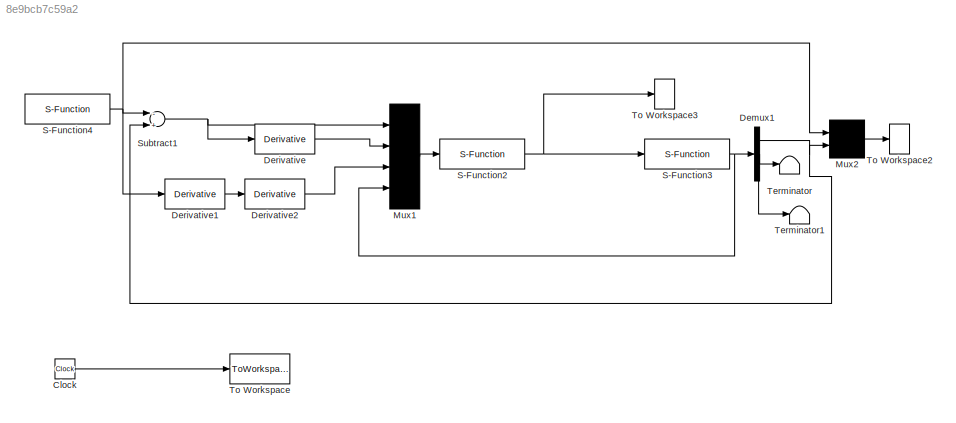
MODEL slx_8e9bcb7c59a2
KIND model
CONFIG AbsTol = auto
CONFIG FixedStep = 0.01
CONFIG MaxStep = auto
CONFIG MinStep = auto
CONFIG RelTol = 1e-3
CONFIG SampleTimeConstraint = Unconstrained
CONFIG Solver = ode3
CONFIG SolverMode = Auto
CONFIG SolverName = ode3
CONFIG StartTime = 0.0
CONFIG StopTime = RunTime
BLOCK [Clock] Clock
BLOCK [Demux] Demux1
  DisplayOption = bar
  Outputs = 3
  Ports = [1, 3]
BLOCK [Derivative] Derivative
BLOCK [Derivative] Derivative1
BLOCK [Derivative] Derivative2
BLOCK [Mux] Mux1
  Ports = [4, 1]
BLOCK [Mux] Mux2
  Inputs = 2
  Ports = [2, 1]
BLOCK [S-Function] S-Function2
  EnableBusSupport = off
  FunctionName = chap2_4ctrl
  Ports = [1, 1]
  SFunctionDeploymentMode = off
  SFunctionModules = 'chap2_4ctrl'
BLOCK [S-Function] S-Function3
  EnableBusSupport = off
  FunctionName = chap2_4plant
  Ports = [1, 1]
  SFunctionDeploymentMode = off
  SFunctionModules = 'chap2_4plant'
BLOCK [S-Function] S-Function4
  EnableBusSupport = off
  FunctionName = chap2_4input
  Ports = [0, 1]
  SFunctionDeploymentMode = off
  SFunctionModules = 'chap2_4input'
BLOCK [Sum] Subtract1
  InputSameDT = off
  Inputs = -+
  OutDataTypeStr = Inherit: Inherit via internal rule
  Ports = [2, 1]
  SaturateOnIntegerOverflow = off
BLOCK [Terminator] Terminator
BLOCK [Terminator] Terminator1
BLOCK [ToWorkspace] To Workspace
  FixptAsFi = on
  MaxDataPoints = inf
  Ports = [1]
  SampleTime = -1
  Save2DSignal = 3-D array (concatenate along third dimension)
  VariableName = t
BLOCK [ToWorkspace] To Workspace2
  FixptAsFi = on
  MaxDataPoints = inf
  Ports = [1]
  SampleTime = -1
  Save2DSignal = 3-D array (concatenate along third dimension)
  VariableName = y
BLOCK [ToWorkspace] To Workspace3
  FixptAsFi = on
  MaxDataPoints = inf
  Ports = [1]
  SampleTime = -1
  Save2DSignal = 3-D array (concatenate along third dimension)
  VariableName = ut
LINE Clock:1 -> To Workspace:1
NET Demux1:1 -> Mux2:2, Subtract1:2
LINE Demux1:2 -> Terminator:1
LINE Demux1:3 -> Terminator1:1
LINE Derivative1:1 -> Derivative2:1
LINE Derivative2:1 -> Mux1:3
LINE Derivative:1 -> Mux1:2
LINE Mux1:1 -> S-Function2:1
LINE Mux2:1 -> To Workspace2:1
NET S-Function2:1 -> S-Function3:1, To Workspace3:1
NET S-Function3:1 -> Demux1:1, Mux1:4
NET S-Function4:1 -> Derivative1:1, Mux2:1, Subtract1:1
NET Subtract1:1 -> Derivative:1, Mux1:1
note: NET lines group one-source signal fan-out (src -> all destinations, sorted); 1:1 wires keep LINE
